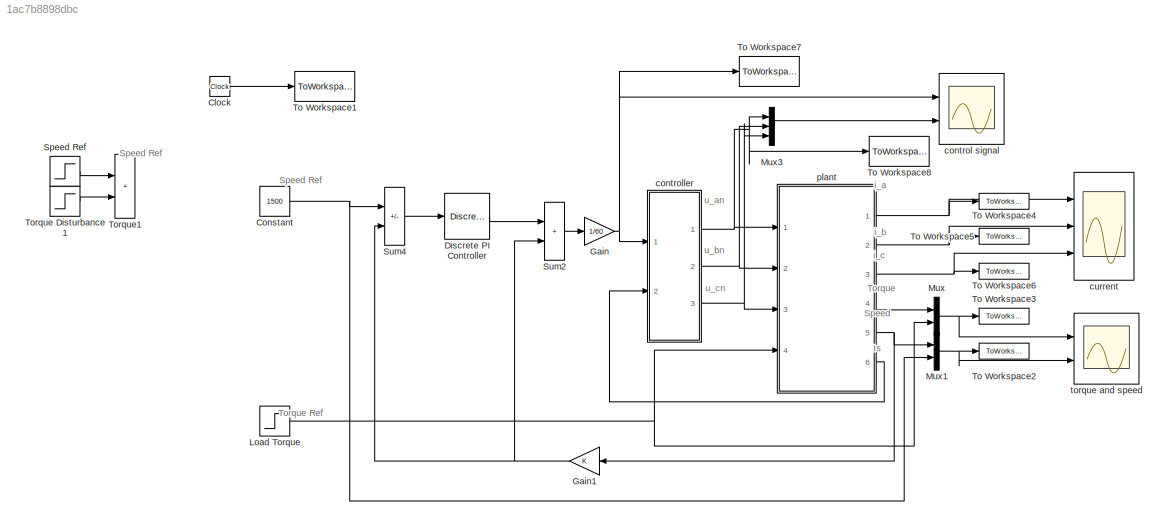
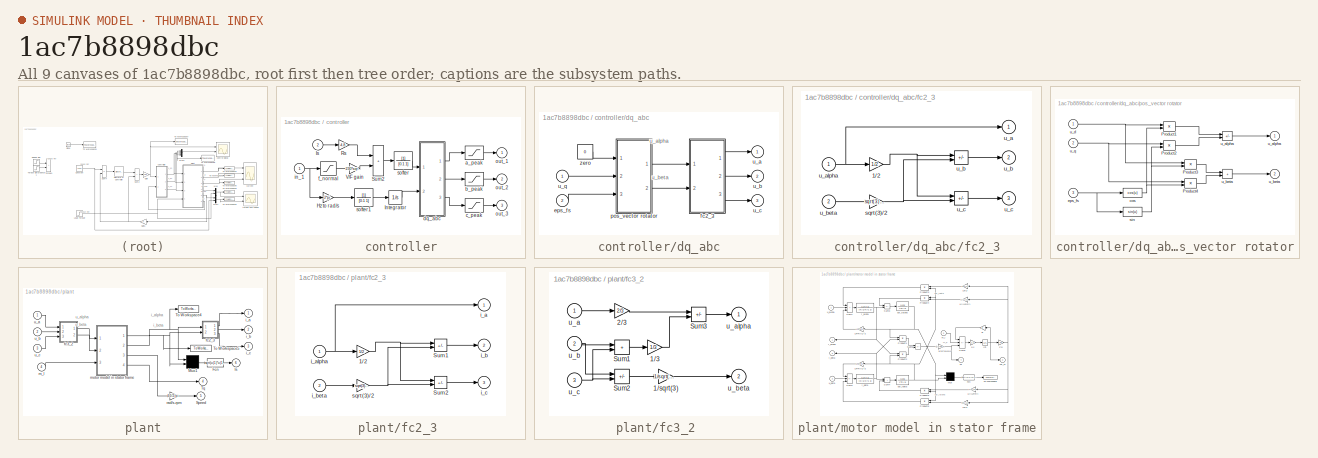
[diagram: thumbnail index - all 9 canvases of the model, root first then tree order]
MODEL slx_1ac7b8898dbc
KIND model
CONFIG AbsTol = auto
CONFIG EnableMultiTasking = on
CONFIG FixedStep = 1e-4
CONFIG MaxStep = auto
CONFIG MinStep = auto
CONFIG RelTol = 1e-3
CONFIG SampleTimeConstraint = Unconstrained
CONFIG Solver = ode4
CONFIG SolverName = ode4
CONFIG StartTime = 0.0
CONFIG StopTime = 4
BLOCK [Clock] Clock
BLOCK [Constant] Constant
  Value = 1500
BLOCK [Reference] Discrete PI Controller  REF=powerlib_extras/Discrete 
Control Blocks/Discrete
PI Controller
  Ports = [1, 1]
  SourceBlock = powerlib_extras/Discrete \nControl Blocks/Discrete\nPI Controller
  SourceProductBaseCode = PS
  SourceType = Discrete PI Controller
BLOCK [Gain] Gain
  Gain = 1/60
BLOCK [Gain] Gain1
BLOCK [Step] Load Torque
  After = 0
  NameLocation = top
  Time = 2
BLOCK [Mux] Mux
  DisplayOption = bar
  Inputs = 2
  Ports = [2, 1]
BLOCK [Mux] Mux1
  DisplayOption = bar
  Inputs = 2
  Ports = [2, 1]
BLOCK [Mux] Mux3
  DisplayOption = bar
  Inputs = 3
  Ports = [3, 1]
BLOCK [Step] Speed Ref
  After = 1200
  Before = 1500
  NameLocation = top
  Time = 2
BLOCK [Sum] Sum2
  IconShape = rectangular
  Ports = [2, 1]
  SaturateOnIntegerOverflow = on
BLOCK [Sum] Sum4
  IconShape = rectangular
  Inputs = +-
  Ports = [2, 1]
  SaturateOnIntegerOverflow = on
BLOCK [ToWorkspace] To Workspace1
  MaxDataPoints = inf
  Ports = [1]
  SampleTime = 1e-4
  VariableName = time
BLOCK [ToWorkspace] To Workspace2
  MaxDataPoints = inf
  Ports = [1]
  SampleTime = 1e-4
  VariableName = Speed
BLOCK [ToWorkspace] To Workspace3
  MaxDataPoints = inf
  Ports = [1]
  SampleTime = 1e-4
  VariableName = Torque
BLOCK [ToWorkspace] To Workspace4
  MaxDataPoints = inf
  Ports = [1]
  SampleTime = 1e-4
  VariableName = Ia
BLOCK [ToWorkspace] To Workspace5
  MaxDataPoints = inf
  Ports = [1]
  SampleTime = 1e-4
  VariableName = Ib
BLOCK [ToWorkspace] To Workspace6
  MaxDataPoints = inf
  Ports = [1]
  SampleTime = 1e-4
  VariableName = Ic
BLOCK [ToWorkspace] To Workspace7
  MaxDataPoints = inf
  Ports = [1]
  SampleTime = 1e-4
  VariableName = frequency
BLOCK [ToWorkspace] To Workspace8
  MaxDataPoints = inf
  Ports = [1]
  SampleTime = 1e-4
  VariableName = Van
BLOCK [Step] Torque Disturbance1
  After = 900
  Before = 1200
  Time = 3
BLOCK [Sum] Torque1
  IconShape = rectangular
  InputSameDT = on
  OutDataTypeStr = Inherit: Same as first input
  Ports = [2, 1]
  SaturateOnIntegerOverflow = on
BLOCK [Scope] control signal
  Floating = off
  NumInputPorts = 2
  Ports = [2]
  ScopeSpecificationString = Simulink.scopes.TimeScopeBlockCfg('CurrentConfiguration', extmgr.ConfigurationSet(extmgr.Configuration('Core','General UI',true),extmgr.Configuration('Core','Source UI',true),extmgr.Configuration('Sources','WiredSimulink',true,'DataLoggingSaveFormat','StructureWithTime','DataLoggingDecimation','1','DataLoggingDecimateData',true),extmgr.Configuration('Visuals','Time Domain',true,'SerializedDisplays...<+2319ch>
BLOCK [SubSystem] controller
  Ports = [2, 3]
  RequestExecContextInheritance = off
  ShowPortLabels = none
BLOCK [Gain] controller/Hz to rad//s
  Gain = 2*pi
  OutDataTypeStr = Inherit: Same as input
  ParamDataTypeStr = Inherit: Same as input
  SaturateOnIntegerOverflow = on
BLOCK [Integrator] controller/Integrator
  Ports = [1, 1]
BLOCK [Inport] controller/Is
  Port = 2
BLOCK [Gain] controller/Rs
  Gain = 4.8
  OutDataTypeStr = Inherit: Same as input
  ParamDataTypeStr = Inherit: Same as input
  SaturateOnIntegerOverflow = on
BLOCK [Sum] controller/Sum2
  IconShape = rectangular
  Ports = [2, 1]
  SaturateOnIntegerOverflow = on
BLOCK [Gain] controller/V//F gain
  Gain = 230*sqrt(2)/50
  OutDataTypeStr = Inherit: Same as input
  ParamDataTypeStr = Inherit: Same as input
  SaturateOnIntegerOverflow = on
BLOCK [Saturate] controller/a_peak
  LowerLimit = -230*sqrt(2)
  UpperLimit = 230*sqrt(2)
BLOCK [Saturate] controller/b_peak
  LowerLimit = -230*sqrt(2)
  UpperLimit = 230*sqrt(2)
BLOCK [Saturate] controller/c_peak
  LowerLimit = -230*sqrt(2)
  UpperLimit = 230*sqrt(2)
BLOCK [SubSystem] controller/dq_abc
  Ports = [2, 3]
  RequestExecContextInheritance = off
BLOCK [Inport] controller/dq_abc/eps_fs
  Port = 2
BLOCK [SubSystem] controller/dq_abc/fc2_3
  Ports = [2, 3]
  RequestExecContextInheritance = off
BLOCK [Gain] controller/dq_abc/fc2_3/1//2
  Gain = 1/2
  OutDataTypeStr = Inherit: Same as input
  ParamDataTypeStr = Inherit: Same as input
  SaturateOnIntegerOverflow = on
BLOCK [Gain] controller/dq_abc/fc2_3/sqrt(3)//2
  Gain = sqrt(3)/2
  OutDataTypeStr = Inherit: Same as input
  ParamDataTypeStr = Inherit: Same as input
  SaturateOnIntegerOverflow = on
BLOCK [Outport] controller/dq_abc/fc2_3/u_a 
  InitialOutput = 0
BLOCK [Inport] controller/dq_abc/fc2_3/u_alpha
BLOCK [Sum] controller/dq_abc/fc2_3/u_b
  IconShape = rectangular
  InputSameDT = on
  Inputs = -+
  OutDataTypeStr = Inherit: Same as first input
  Ports = [2, 1]
  SaturateOnIntegerOverflow = on
BLOCK [Outport] controller/dq_abc/fc2_3/u_b 
  InitialOutput = 0
  Port = 2
BLOCK [Inport] controller/dq_abc/fc2_3/u_beta
  Port = 2
BLOCK [Sum] controller/dq_abc/fc2_3/u_c
  IconShape = rectangular
  InputSameDT = on
  Inputs = --
  OutDataTypeStr = Inherit: Same as first input
  Ports = [2, 1]
  SaturateOnIntegerOverflow = on
BLOCK [Outport] controller/dq_abc/fc2_3/u_c 
  InitialOutput = 0
  Port = 3
BLOCK [SubSystem] controller/dq_abc/pos_vector rotator
  Ports = [3, 2]
  RequestExecContextInheritance = off
BLOCK [Product] controller/dq_abc/pos_vector rotator/Product1
  InputSameDT = on
  OutDataTypeStr = Inherit: Same as first input
  Ports = [2, 1]
  SaturateOnIntegerOverflow = on
BLOCK [Product] controller/dq_abc/pos_vector rotator/Product2
  InputSameDT = on
  OutDataTypeStr = Inherit: Same as first input
  Ports = [2, 1]
  SaturateOnIntegerOverflow = on
BLOCK [Product] controller/dq_abc/pos_vector rotator/Product3
  InputSameDT = on
  OutDataTypeStr = Inherit: Same as first input
  Ports = [2, 1]
  SaturateOnIntegerOverflow = on
BLOCK [Product] controller/dq_abc/pos_vector rotator/Product4
  InputSameDT = on
  OutDataTypeStr = Inherit: Same as first input
  Ports = [2, 1]
  SaturateOnIntegerOverflow = on
BLOCK [Fcn] controller/dq_abc/pos_vector rotator/cos
  Expr = cos(u)
BLOCK [Inport] controller/dq_abc/pos_vector rotator/eps_fs
  Port = 3
BLOCK [Fcn] controller/dq_abc/pos_vector rotator/sin
  Expr = sin(u)
BLOCK [Sum] controller/dq_abc/pos_vector rotator/u_alpha
  IconShape = rectangular
  InputSameDT = on
  Inputs = +-
  OutDataTypeStr = Inherit: Same as first input
  Ports = [2, 1]
  SaturateOnIntegerOverflow = on
BLOCK [Outport] controller/dq_abc/pos_vector rotator/u_alpha 
  InitialOutput = 0
BLOCK [Sum] controller/dq_abc/pos_vector rotator/u_beta
  IconShape = rectangular
  InputSameDT = on
  OutDataTypeStr = Inherit: Same as first input
  Ports = [2, 1]
  SaturateOnIntegerOverflow = on
BLOCK [Outport] controller/dq_abc/pos_vector rotator/u_beta 
  InitialOutput = 0
  Port = 2
BLOCK [Inport] controller/dq_abc/pos_vector rotator/u_d
BLOCK [Inport] controller/dq_abc/pos_vector rotator/u_q
  Port = 2
BLOCK [Outport] controller/dq_abc/u_a
  InitialOutput = 0
BLOCK [Outport] controller/dq_abc/u_b
  InitialOutput = 0
  Port = 2
BLOCK [Outport] controller/dq_abc/u_c
  InitialOutput = 0
  Port = 3
BLOCK [Inport] controller/dq_abc/u_q
BLOCK [Constant] controller/dq_abc/zero  
  Value = 0
BLOCK [Saturate] controller/f_normal
  LowerLimit = 0
  UpperLimit = 50
BLOCK [Inport] controller/in_1
BLOCK [Outport] controller/out_1
  InitialOutput = 0
BLOCK [Outport] controller/out_2
  InitialOutput = 0
  Port = 2
BLOCK [Outport] controller/out_3
  InitialOutput = 0
  Port = 3
BLOCK [TransferFcn] controller/softer
  Denominator = [0.1 1]
BLOCK [TransferFcn] controller/softer1
  Denominator = [0.1 1]
BLOCK [Scope] current
  Floating = off
  NumInputPorts = 3
  Ports = [3]
  ScopeSpecificationString = Simulink.scopes.TimeScopeBlockCfg('CurrentConfiguration', extmgr.ConfigurationSet(extmgr.Configuration('Core','General UI',true),extmgr.Configuration('Core','Source UI',true),extmgr.Configuration('Sources','WiredSimulink',true,'DataLoggingVariableName','ScopeData1','DataLoggingSaveFormat','StructureWithTime','DataLoggingDecimation','1','DataLoggingDecimateData',true),extmgr.Configuration('Visuals'...<+2975ch>
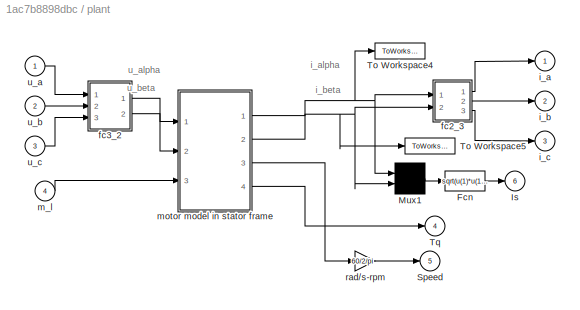
BLOCK [SubSystem] plant
  Ports = [4, 6]
  RequestExecContextInheritance = off
  ShowPortLabels = none
BLOCK [Fcn] plant/Fcn
  Expr = sqrt(u(1)*u(1)+u(2)*u(2))
BLOCK [Outport] plant/Is
  Port = 6
BLOCK [Mux] plant/Mux1
  Inputs = 2
  Ports = [2, 1]
BLOCK [Outport] plant/Speed
  Port = 5
BLOCK [ToWorkspace] plant/To Workspace4
  MaxDataPoints = 20000
  Ports = [1]
  VariableName = i_alpha
BLOCK [ToWorkspace] plant/To Workspace5
  MaxDataPoints = 20000
  Ports = [1]
  VariableName = i_beta
BLOCK [Outport] plant/Tq
  Port = 4
BLOCK [SubSystem] plant/fc2_3 
  Ports = [2, 3]
  RequestExecContextInheritance = off
  ShowPortLabels = none
BLOCK [Gain] plant/fc2_3 /1//2
  Gain = 1/2
  OutDataTypeStr = Inherit: Same as input
  ParamDataTypeStr = Inherit: Same as input
  SaturateOnIntegerOverflow = on
BLOCK [Sum] plant/fc2_3 /Sum1
  IconShape = rectangular
  InputSameDT = on
  Inputs = -+
  OutDataTypeStr = Inherit: Same as first input
  Ports = [2, 1]
  SaturateOnIntegerOverflow = on
BLOCK [Sum] plant/fc2_3 /Sum2
  IconShape = rectangular
  InputSameDT = on
  Inputs = --
  OutDataTypeStr = Inherit: Same as first input
  Ports = [2, 1]
  SaturateOnIntegerOverflow = on
BLOCK [Outport] plant/fc2_3 /i_a 
BLOCK [Inport] plant/fc2_3 /i_alpha
BLOCK [Outport] plant/fc2_3 /i_b 
  Port = 2
BLOCK [Inport] plant/fc2_3 /i_beta
  Port = 2
BLOCK [Outport] plant/fc2_3 /i_c 
  Port = 3
BLOCK [Gain] plant/fc2_3 /sqrt(3)//2
  Gain = sqrt(3)/2
  OutDataTypeStr = Inherit: Same as input
  ParamDataTypeStr = Inherit: Same as input
  SaturateOnIntegerOverflow = on
BLOCK [SubSystem] plant/fc3_2 
  Ports = [3, 2]
  RequestExecContextInheritance = off
  ShowPortLabels = none
BLOCK [Gain] plant/fc3_2 /1//3
  Gain = 1/3
  OutDataTypeStr = Inherit: Same as input
  ParamDataTypeStr = Inherit: Same as input
  SaturateOnIntegerOverflow = on
BLOCK [Gain] plant/fc3_2 /1//sqrt(3)
  Gain = 1/sqrt(3)
  OutDataTypeStr = Inherit: Same as input
  ParamDataTypeStr = Inherit: Same as input
  SaturateOnIntegerOverflow = on
BLOCK [Gain] plant/fc3_2 /2//3
  Gain = 2/3
  OutDataTypeStr = Inherit: Same as input
  ParamDataTypeStr = Inherit: Same as input
  SaturateOnIntegerOverflow = on
BLOCK [Sum] plant/fc3_2 /Sum1
  IconShape = rectangular
  InputSameDT = on
  OutDataTypeStr = Inherit: Same as first input
  Ports = [2, 1]
  SaturateOnIntegerOverflow = on
BLOCK [Sum] plant/fc3_2 /Sum2
  IconShape = rectangular
  InputSameDT = on
  Inputs = +-
  OutDataTypeStr = Inherit: Same as first input
  Ports = [2, 1]
  SaturateOnIntegerOverflow = on
BLOCK [Sum] plant/fc3_2 /Sum3
  IconShape = rectangular
  InputSameDT = on
  Inputs = +-
  OutDataTypeStr = Inherit: Same as first input
  Ports = [2, 1]
  SaturateOnIntegerOverflow = on
BLOCK [Inport] plant/fc3_2 /u_a
BLOCK [Outport] plant/fc3_2 /u_alpha 
BLOCK [Inport] plant/fc3_2 /u_b
  Port = 2
BLOCK [Outport] plant/fc3_2 /u_beta 
  Port = 2
BLOCK [Inport] plant/fc3_2 /u_c
  Port = 3
BLOCK [Outport] plant/i_a
BLOCK [Outport] plant/i_b
  Port = 2
BLOCK [Outport] plant/i_c
  Port = 3
BLOCK [Inport] plant/m_l
  Port = 4
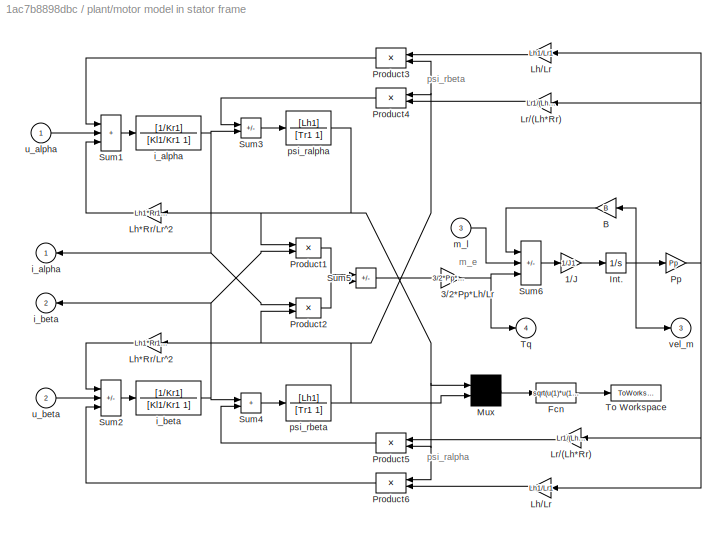
BLOCK [SubSystem] plant/motor model in stator frame
  Ports = [3, 4]
  RequestExecContextInheritance = off
  ShowPortLabels = none
BLOCK [Gain] plant/motor model in stator frame/1//J
  Gain = 1/J1
  OutDataTypeStr = Inherit: Same as input
  ParamDataTypeStr = Inherit: Same as input
  SaturateOnIntegerOverflow = on
BLOCK [Gain] plant/motor model in stator frame/3//2*Pp*Lh//Lr
  Gain = 3/2*Pp*Lh1/Lr1
  OutDataTypeStr = Inherit: Same as input
  ParamDataTypeStr = Inherit: Same as input
  SaturateOnIntegerOverflow = on
BLOCK [Gain] plant/motor model in stator frame/B
  Gain = B
  OutDataTypeStr = Inherit: Same as input
  ParamDataTypeStr = Inherit: Same as input
  SaturateOnIntegerOverflow = on
BLOCK [Fcn] plant/motor model in stator frame/Fcn
  Expr = sqrt(u(1)*u(1)+u(2)*u(2))
BLOCK [Integrator] plant/motor model in stator frame/Int.
  Ports = [1, 1]
BLOCK [Gain] plant/motor model in stator frame/Lh*Rr//Lr^2
  Gain = Lh1*Rr1/Lr1^2
  OutDataTypeStr = Inherit: Same as input
  ParamDataTypeStr = Inherit: Same as input
  SaturateOnIntegerOverflow = on
BLOCK [Gain] plant/motor model in stator frame/Lh*Rr//Lr^2 
  Gain = Lh1*Rr1/Lr1^2
  OutDataTypeStr = Inherit: Same as input
  ParamDataTypeStr = Inherit: Same as input
  SaturateOnIntegerOverflow = on
BLOCK [Gain] plant/motor model in stator frame/Lh//Lr
  Gain = Lh1/Lr1
  OutDataTypeStr = Inherit: Same as input
  ParamDataTypeStr = Inherit: Same as input
  SaturateOnIntegerOverflow = on
BLOCK [Gain] plant/motor model in stator frame/Lh//Lr 
  Gain = Lh1/Lr1
  OutDataTypeStr = Inherit: Same as input
  ParamDataTypeStr = Inherit: Same as input
  SaturateOnIntegerOverflow = on
BLOCK [Gain] plant/motor model in stator frame/Lr//(Lh*Rr)
  Gain = Lr1/(Lh1*Rr1)
  OutDataTypeStr = Inherit: Same as input
  ParamDataTypeStr = Inherit: Same as input
  SaturateOnIntegerOverflow = on
BLOCK [Gain] plant/motor model in stator frame/Lr//(Lh*Rr) 
  Gain = Lr1/(Lh1*Rr1)
  OutDataTypeStr = Inherit: Same as input
  ParamDataTypeStr = Inherit: Same as input
  SaturateOnIntegerOverflow = on
BLOCK [Mux] plant/motor model in stator frame/Mux
  Inputs = 2
  Ports = [2, 1]
BLOCK [Gain] plant/motor model in stator frame/Pp
  Gain = Pp
  OutDataTypeStr = Inherit: Same as input
  ParamDataTypeStr = Inherit: Same as input
  SaturateOnIntegerOverflow = on
BLOCK [Product] plant/motor model in stator frame/Product1
  InputSameDT = on
  OutDataTypeStr = Inherit: Same as first input
  Ports = [2, 1]
  SaturateOnIntegerOverflow = on
BLOCK [Product] plant/motor model in stator frame/Product2
  InputSameDT = on
  OutDataTypeStr = Inherit: Same as first input
  Ports = [2, 1]
  SaturateOnIntegerOverflow = on
BLOCK [Product] plant/motor model in stator frame/Product3
  InputSameDT = on
  OutDataTypeStr = Inherit: Same as first input
  Ports = [2, 1]
  SaturateOnIntegerOverflow = on
BLOCK [Product] plant/motor model in stator frame/Product4
  InputSameDT = on
  OutDataTypeStr = Inherit: Same as first input
  Ports = [2, 1]
  SaturateOnIntegerOverflow = on
BLOCK [Product] plant/motor model in stator frame/Product5
  InputSameDT = on
  OutDataTypeStr = Inherit: Same as first input
  Ports = [2, 1]
  SaturateOnIntegerOverflow = on
BLOCK [Product] plant/motor model in stator frame/Product6
  InputSameDT = on
  OutDataTypeStr = Inherit: Same as first input
  Ports = [2, 1]
  SaturateOnIntegerOverflow = on
BLOCK [Sum] plant/motor model in stator frame/Sum1
  IconShape = rectangular
  InputSameDT = on
  Inputs = +++
  OutDataTypeStr = Inherit: Same as first input
  Ports = [3, 1]
  SaturateOnIntegerOverflow = on
BLOCK [Sum] plant/motor model in stator frame/Sum2
  IconShape = rectangular
  InputSameDT = on
  Inputs = ++-
  OutDataTypeStr = Inherit: Same as first input
  Ports = [3, 1]
  SaturateOnIntegerOverflow = on
BLOCK [Sum] plant/motor model in stator frame/Sum3
  IconShape = rectangular
  InputSameDT = on
  Inputs = -+
  OutDataTypeStr = Inherit: Same as first input
  Ports = [2, 1]
  SaturateOnIntegerOverflow = on
BLOCK [Sum] plant/motor model in stator frame/Sum4
  IconShape = rectangular
  InputSameDT = on
  OutDataTypeStr = Inherit: Same as first input
  Ports = [2, 1]
  SaturateOnIntegerOverflow = on
BLOCK [Sum] plant/motor model in stator frame/Sum5
  IconShape = rectangular
  InputSameDT = on
  Inputs = +-
  OutDataTypeStr = Inherit: Same as first input
  Ports = [2, 1]
  SaturateOnIntegerOverflow = on
BLOCK [Sum] plant/motor model in stator frame/Sum6
  IconShape = rectangular
  InputSameDT = on
  Inputs = --+
  OutDataTypeStr = Inherit: Same as first input
  Ports = [3, 1]
  SaturateOnIntegerOverflow = on
BLOCK [ToWorkspace] plant/motor model in stator frame/To Workspace
  MaxDataPoints = inf
  Ports = [1]
  SampleTime = 1e-4
  VariableName = flux
BLOCK [Outport] plant/motor model in stator frame/Tq
  Port = 4
BLOCK [TransferFcn] plant/motor model in stator frame/i_alpha
  Denominator = [Kl1/Kr1 1]
  Numerator = [1/Kr1]
BLOCK [Outport] plant/motor model in stator frame/i_alpha 
BLOCK [TransferFcn] plant/motor model in stator frame/i_beta
  Denominator = [Kl1/Kr1 1]
  Numerator = [1/Kr1]
BLOCK [Outport] plant/motor model in stator frame/i_beta 
  Port = 2
BLOCK [Inport] plant/motor model in stator frame/m_l
  Port = 3
BLOCK [TransferFcn] plant/motor model in stator frame/psi_ralpha
  Denominator = [Tr1 1]
  Numerator = [Lh1]
BLOCK [TransferFcn] plant/motor model in stator frame/psi_rbeta
  Denominator = [Tr1 1]
  Numerator = [Lh1]
BLOCK [Inport] plant/motor model in stator frame/u_alpha
BLOCK [Inport] plant/motor model in stator frame/u_beta
  Port = 2
BLOCK [Outport] plant/motor model in stator frame/vel_m
  Port = 3
BLOCK [Gain] plant/rad//s-rpm
  Gain = 60/2/pi
  OutDataTypeStr = Inherit: Same as input
  ParamDataTypeStr = Inherit: Same as input
  SaturateOnIntegerOverflow = on
BLOCK [Inport] plant/u_a
BLOCK [Inport] plant/u_b
  Port = 2
BLOCK [Inport] plant/u_c
  Port = 3
BLOCK [Scope] torque and speed
  Floating = off
  NumInputPorts = 2
  Ports = [2]
  ScopeSpecificationString = Simulink.scopes.TimeScopeBlockCfg('CurrentConfiguration', extmgr.ConfigurationSet(extmgr.Configuration('Core','General UI',true),extmgr.Configuration('Core','Source UI',true),extmgr.Configuration('Sources','WiredSimulink',true,'DataLoggingVariableName','ScopeData2','DataLoggingSaveFormat','StructureWithTime','DataLoggingDecimation','1','DataLoggingDecimateData',true),extmgr.Configuration('Visuals'...<+2319ch>
ANNOTATION (root): Is
ANNOTATION (root): Speed
ANNOTATION (root): Speed Ref
ANNOTATION (root): Torque
ANNOTATION (root): Torque Ref
ANNOTATION (root): i_a
ANNOTATION (root): i_b
ANNOTATION (root): i_c
ANNOTATION (root): u_an
ANNOTATION (root): u_bn
ANNOTATION (root): u_cn
ANNOTATION controller/dq_abc: u_alpha
ANNOTATION controller/dq_abc: u_beta
ANNOTATION plant: i_alpha
ANNOTATION plant: i_beta
ANNOTATION plant: u_alpha
ANNOTATION plant: u_beta
ANNOTATION plant/motor model in stator frame: m_e
ANNOTATION plant/motor model in stator frame: psi_ralpha
ANNOTATION plant/motor model in stator frame: psi_rbeta
LINE Clock:1 -> To Workspace1:1
NET Constant:1 -> Mux1:2, Sum4:1
LINE Discrete PI Controller:1 -> Sum2:1
NET Gain1:1 -> Sum2:2, Sum4:2
NET Gain:1 -> To Workspace7:1, control signal:1, controller:1
NET Load Torque:1 -> Mux:2, plant:4
NET Mux1:1 -> To Workspace2:1, torque and speed:2
LINE Mux3:1 -> control signal:2
NET Mux:1 -> To Workspace3:1, torque and speed:1
LINE Speed Ref:1 -> Torque1:1
LINE Sum2:1 -> Gain:1
LINE Sum4:1 -> Discrete PI Controller:1
LINE Torque Disturbance1:1 -> Torque1:2
LINE controller/Hz to rad//s:1 -> controller/softer1:1
LINE controller/Integrator:1 -> controller/dq_abc:2
LINE controller/Is:1 -> controller/Rs:1
LINE controller/Rs:1 -> controller/Sum2:1
LINE controller/Sum2:1 -> controller/softer:1
LINE controller/V//F gain:1 -> controller/Sum2:2
LINE controller/a_peak:1 -> controller/out_1:1
LINE controller/b_peak:1 -> controller/out_2:1
LINE controller/c_peak:1 -> controller/out_3:1
LINE controller/dq_abc/eps_fs:1 -> controller/dq_abc/pos_vector rotator:3
NET controller/dq_abc/fc2_3/1//2:1 -> controller/dq_abc/fc2_3/u_b:1, controller/dq_abc/fc2_3/u_c:1
NET controller/dq_abc/fc2_3/sqrt(3)//2:1 -> controller/dq_abc/fc2_3/u_b:2, controller/dq_abc/fc2_3/u_c:2
NET controller/dq_abc/fc2_3/u_alpha:1 -> controller/dq_abc/fc2_3/1//2:1, controller/dq_abc/fc2_3/u_a :1
LINE controller/dq_abc/fc2_3/u_b:1 -> controller/dq_abc/fc2_3/u_b :1
LINE controller/dq_abc/fc2_3/u_beta:1 -> controller/dq_abc/fc2_3/sqrt(3)//2:1
LINE controller/dq_abc/fc2_3/u_c:1 -> controller/dq_abc/fc2_3/u_c :1
LINE controller/dq_abc/fc2_3:1 -> controller/dq_abc/u_a:1
LINE controller/dq_abc/fc2_3:2 -> controller/dq_abc/u_b:1
LINE controller/dq_abc/fc2_3:3 -> controller/dq_abc/u_c:1
LINE controller/dq_abc/pos_vector rotator/Product1:1 -> controller/dq_abc/pos_vector rotator/u_alpha:1
LINE controller/dq_abc/pos_vector rotator/Product2:1 -> controller/dq_abc/pos_vector rotator/u_alpha:2
LINE controller/dq_abc/pos_vector rotator/Product3:1 -> controller/dq_abc/pos_vector rotator/u_beta:1
LINE controller/dq_abc/pos_vector rotator/Product4:1 -> controller/dq_abc/pos_vector rotator/u_beta:2
NET controller/dq_abc/pos_vector rotator/cos:1 -> controller/dq_abc/pos_vector rotator/Product1:2, controller/dq_abc/pos_vector rotator/Product4:2
NET controller/dq_abc/pos_vector rotator/eps_fs:1 -> controller/dq_abc/pos_vector rotator/cos:1, controller/dq_abc/pos_vector rotator/sin:1
NET controller/dq_abc/pos_vector rotator/sin:1 -> controller/dq_abc/pos_vector rotator/Product2:2, controller/dq_abc/pos_vector rotator/Product3:2
LINE controller/dq_abc/pos_vector rotator/u_alpha:1 -> controller/dq_abc/pos_vector rotator/u_alpha :1
LINE controller/dq_abc/pos_vector rotator/u_beta:1 -> controller/dq_abc/pos_vector rotator/u_beta :1
NET controller/dq_abc/pos_vector rotator/u_d:1 -> controller/dq_abc/pos_vector rotator/Product1:1, controller/dq_abc/pos_vector rotator/Product3:1
NET controller/dq_abc/pos_vector rotator/u_q:1 -> controller/dq_abc/pos_vector rotator/Product2:1, controller/dq_abc/pos_vector rotator/Product4:1
LINE controller/dq_abc/pos_vector rotator:1 -> controller/dq_abc/fc2_3:1
LINE controller/dq_abc/pos_vector rotator:2 -> controller/dq_abc/fc2_3:2
LINE controller/dq_abc/u_q:1 -> controller/dq_abc/pos_vector rotator:2
LINE controller/dq_abc/zero  :1 -> controller/dq_abc/pos_vector rotator:1
LINE controller/dq_abc:1 -> controller/a_peak:1
LINE controller/dq_abc:2 -> controller/b_peak:1
LINE controller/dq_abc:3 -> controller/c_peak:1
LINE controller/f_normal:1 -> controller/V//F gain:1
NET controller/in_1:1 -> controller/Hz to rad//s:1, controller/f_normal:1
LINE controller/softer1:1 -> controller/Integrator:1
LINE controller/softer:1 -> controller/dq_abc:1
NET controller:1 -> Mux3:1, To Workspace8:1, plant:1
NET controller:2 -> Mux3:2, plant:2
NET controller:3 -> Mux3:3, plant:3
LINE plant/Fcn:1 -> plant/Is:1
LINE plant/Mux1:1 -> plant/Fcn:1
NET plant/fc2_3 /1//2:1 -> plant/fc2_3 /Sum1:1, plant/fc2_3 /Sum2:1
LINE plant/fc2_3 /Sum1:1 -> plant/fc2_3 /i_b :1
LINE plant/fc2_3 /Sum2:1 -> plant/fc2_3 /i_c :1
NET plant/fc2_3 /i_alpha:1 -> plant/fc2_3 /1//2:1, plant/fc2_3 /i_a :1
LINE plant/fc2_3 /i_beta:1 -> plant/fc2_3 /sqrt(3)//2:1
NET plant/fc2_3 /sqrt(3)//2:1 -> plant/fc2_3 /Sum1:2, plant/fc2_3 /Sum2:2
LINE plant/fc2_3 :1 -> plant/i_a:1
LINE plant/fc2_3 :2 -> plant/i_b:1
LINE plant/fc2_3 :3 -> plant/i_c:1
LINE plant/fc3_2 /1//3:1 -> plant/fc3_2 /Sum3:2
LINE plant/fc3_2 /1//sqrt(3):1 -> plant/fc3_2 /u_beta :1
LINE plant/fc3_2 /2//3:1 -> plant/fc3_2 /Sum3:1
LINE plant/fc3_2 /Sum1:1 -> plant/fc3_2 /1//3:1
LINE plant/fc3_2 /Sum2:1 -> plant/fc3_2 /1//sqrt(3):1
LINE plant/fc3_2 /Sum3:1 -> plant/fc3_2 /u_alpha :1
LINE plant/fc3_2 /u_a:1 -> plant/fc3_2 /2//3:1
NET plant/fc3_2 /u_b:1 -> plant/fc3_2 /Sum1:1, plant/fc3_2 /Sum2:1
NET plant/fc3_2 /u_c:1 -> plant/fc3_2 /Sum1:2, plant/fc3_2 /Sum2:2
LINE plant/fc3_2 :1 -> plant/motor model in stator frame:1
LINE plant/fc3_2 :2 -> plant/motor model in stator frame:2
LINE plant/m_l:1 -> plant/motor model in stator frame:3
LINE plant/motor model in stator frame/1//J:1 -> plant/motor model in stator frame/Int.:1
NET plant/motor model in stator frame/3//2*Pp*Lh//Lr:1 -> plant/motor model in stator frame/Sum6:3, plant/motor model in stator frame/Tq:1
LINE plant/motor model in stator frame/B:1 -> plant/motor model in stator frame/Sum6:1
LINE plant/motor model in stator frame/Fcn:1 -> plant/motor model in stator frame/To Workspace:1
NET plant/motor model in stator frame/Int.:1 -> plant/motor model in stator frame/B:1, plant/motor model in stator frame/Pp:1, plant/motor model in stator frame/vel_m:1
LINE plant/motor model in stator frame/Lh*Rr//Lr^2 :1 -> plant/motor model in stator frame/Sum2:1
LINE plant/motor model in stator frame/Lh*Rr//Lr^2:1 -> plant/motor model in stator frame/Sum1:3
LINE plant/motor model in stator frame/Lh//Lr :1 -> plant/motor model in stator frame/Product6:2
LINE plant/motor model in stator frame/Lh//Lr:1 -> plant/motor model in stator frame/Product3:1
LINE plant/motor model in stator frame/Lr//(Lh*Rr) :1 -> plant/motor model in stator frame/Product5:1
LINE plant/motor model in stator frame/Lr//(Lh*Rr):1 -> plant/motor model in stator frame/Product4:2
LINE plant/motor model in stator frame/Mux:1 -> plant/motor model in stator frame/Fcn:1
NET plant/motor model in stator frame/Pp:1 -> plant/motor model in stator frame/Lh//Lr :1, plant/motor model in stator frame/Lh//Lr:1, plant/motor model in stator frame/Lr//(Lh*Rr) :1, plant/motor model in stator frame/Lr//(Lh*Rr):1
LINE plant/motor model in stator frame/Product1:1 -> plant/motor model in stator frame/Sum5:1
LINE plant/motor model in stator frame/Product2:1 -> plant/motor model in stator frame/Sum5:2
LINE plant/motor model in stator frame/Product3:1 -> plant/motor model in stator frame/Sum1:1
LINE plant/motor model in stator frame/Product4:1 -> plant/motor model in stator frame/Sum3:1
LINE plant/motor model in stator frame/Product5:1 -> plant/motor model in stator frame/Sum4:2
LINE plant/motor model in stator frame/Product6:1 -> plant/motor model in stator frame/Sum2:3
LINE plant/motor model in stator frame/Sum1:1 -> plant/motor model in stator frame/i_alpha:1
LINE plant/motor model in stator frame/Sum2:1 -> plant/motor model in stator frame/i_beta:1
LINE plant/motor model in stator frame/Sum3:1 -> plant/motor model in stator frame/psi_ralpha:1
LINE plant/motor model in stator frame/Sum4:1 -> plant/motor model in stator frame/psi_rbeta:1
LINE plant/motor model in stator frame/Sum5:1 -> plant/motor model in stator frame/3//2*Pp*Lh//Lr:1
LINE plant/motor model in stator frame/Sum6:1 -> plant/motor model in stator frame/1//J:1
NET plant/motor model in stator frame/i_alpha:1 -> plant/motor model in stator frame/Product2:1, plant/motor model in stator frame/Sum3:2, plant/motor model in stator frame/i_alpha :1
NET plant/motor model in stator frame/i_beta:1 -> plant/motor model in stator frame/Product1:2, plant/motor model in stator frame/Sum4:1, plant/motor model in stator frame/i_beta :1
LINE plant/motor model in stator frame/m_l:1 -> plant/motor model in stator frame/Sum6:2
NET plant/motor model in stator frame/psi_ralpha:1 -> plant/motor model in stator frame/Lh*Rr//Lr^2:1, plant/motor model in stator frame/Mux:1, plant/motor model in stator frame/Product1:1, plant/motor model in stator frame/Product5:2, plant/motor model in stator frame/Product6:1
NET plant/motor model in stator frame/psi_rbeta:1 -> plant/motor model in stator frame/Lh*Rr//Lr^2 :1, plant/motor model in stator frame/Mux:2, plant/motor model in stator frame/Product2:2, plant/motor model in stator frame/Product3:2, plant/motor model in stator frame/Product4:1
LINE plant/motor model in stator frame/u_alpha:1 -> plant/motor model in stator frame/Sum1:2
LINE plant/motor model in stator frame/u_beta:1 -> plant/motor model in stator frame/Sum2:2
NET plant/motor model in stator frame:1 -> plant/Mux1:1, plant/To Workspace4:1, plant/fc2_3 :1
NET plant/motor model in stator frame:2 -> plant/Mux1:2, plant/To Workspace5:1, plant/fc2_3 :2
LINE plant/motor model in stator frame:3 -> plant/rad//s-rpm:1
LINE plant/motor model in stator frame:4 -> plant/Tq:1
LINE plant/rad//s-rpm:1 -> plant/Speed:1
LINE plant/u_a:1 -> plant/fc3_2 :1
LINE plant/u_b:1 -> plant/fc3_2 :2
LINE plant/u_c:1 -> plant/fc3_2 :3
NET plant:1 -> To Workspace4:1, current:1
NET plant:2 -> To Workspace5:1, current:2
NET plant:3 -> To Workspace6:1, current:3
LINE plant:4 -> Mux:1
NET plant:5 -> Gain1:1, Mux1:1
LINE plant:6 -> controller:2
note: NET lines group one-source signal fan-out (src -> all destinations, sorted); 1:1 wires keep LINE
